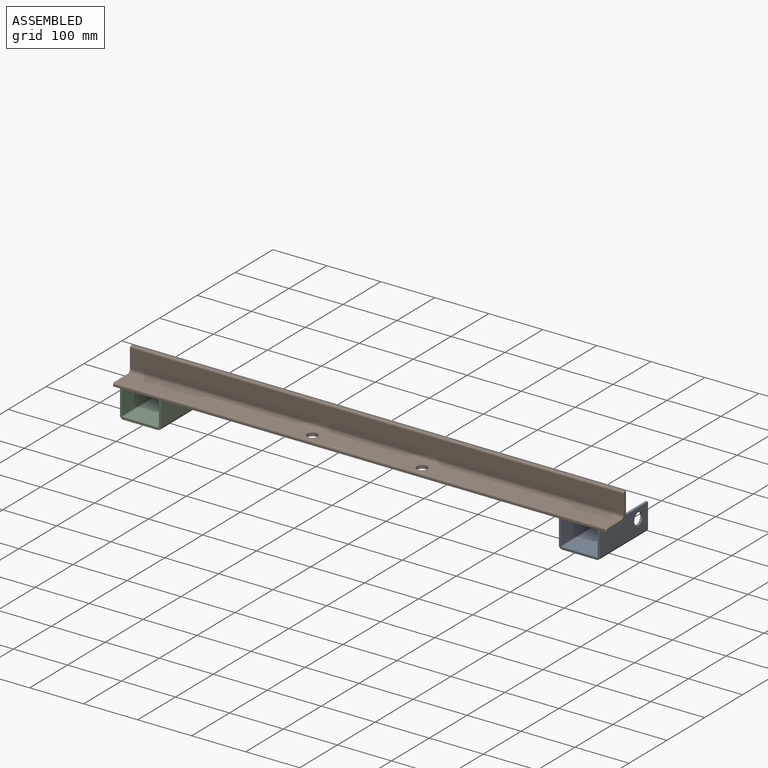
[diagram: assembled view]
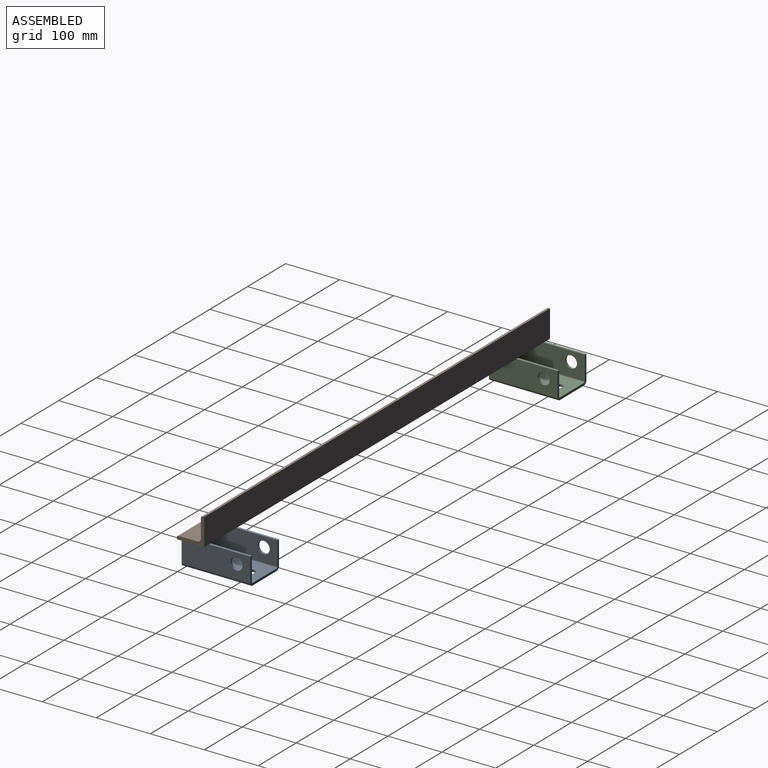
[diagram: assembled view, second angle]
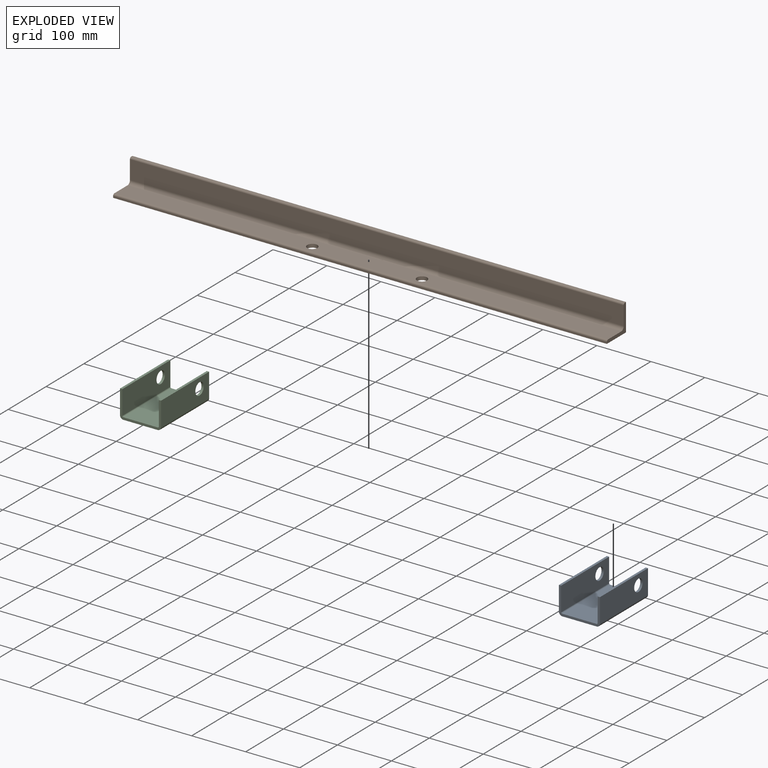
[diagram: exploded view]
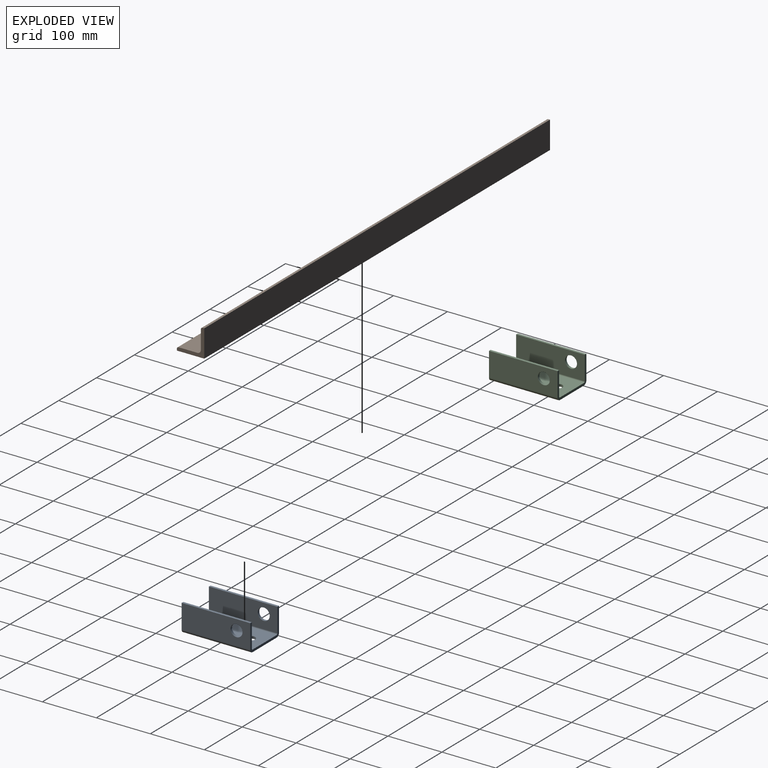
[diagram: exploded view, second angle]
ASSEMBLY  parts=3 mates=2
PART A: 17 faces, bbox 76.2x127x50.8 mm
  f0: plane 127x63.5mm, normal (0,0,1), area 7866.6mm2, adj f1,f11,f12,f13,f14
  f1: cylinder r=2.06mm len=127mm, axis (0,1,0), area 410.4mm2, adj f0,f2,f12,f13
  f2: plane 127x44.45mm, normal (1,0,0), area 5257.2mm2, adj f1,f3,f12,f13,f16
  f3: plane 127x4.29mm, normal (0,0,1), area 545.2mm2, adj f2,f4,f12,f13
  f4: plane 127x44.45mm, normal (-1,0,0), area 5257.2mm2, adj f3,f5,f12,f13,f16
  f5: cylinder r=6.35mm len=127mm, axis (0,1,0), area 1266.8mm2, adj f4,f6,f12,f13
  f6: plane 127x63.5mm, normal (0,0,-1), area 7866.6mm2, adj f5,f7,f12,f13,f14
  f7: cylinder r=6.35mm len=127mm, axis (0,1,0), area 1266.8mm2, adj f6,f8,f12,f13
  f8: plane 127x44.45mm, normal (1,0,0), area 5257.2mm2, adj f7,f9,f12,f13,f15
  f9: plane 127x4.29mm, normal (0,0,1), area 545.2mm2, adj f8,f10,f12,f13
  f10: plane 127x44.45mm, normal (-1,0,0), area 5257.2mm2, adj f9,f11,f12,f13,f15
  f11: cylinder r=2.06mm len=127mm, axis (0,1,0), area 410.4mm2, adj f0,f10,f12,f13
  f12: plane 76.2x50.8mm, normal (0,-1,0), area 710.9mm2, adj f0,f1,f2,f3,f4,f5,f6,f7
  f13: plane 76.2x50.8mm, normal (0,1,0), area 710.9mm2, adj f0,f1,f2,f3,f4,f5,f6,f7
  f14: cylinder r=7.94mm len=15.88mm, axis (0,0,-1), area 214.1mm2, adj f0,f6
  f15: cylinder r=11.11mm len=22.23mm, axis (1,0,0), area 299.7mm2, adj f8,f10
  f16: cylinder r=11.11mm len=22.23mm, axis (1,0,0), area 299.7mm2, adj f2,f4
PART B: 13 faces, bbox 914.4x50.8x50.8 mm
  f0: plane 50.8x50.8mm, normal (-1,0,0), area 609.2mm2, adj f2,f3,f4,f5,f6,f7,f8,f9
  f1: plane 50.8x50.8mm, normal (1,0,0), area 609.2mm2, adj f2,f3,f4,f5,f6,f7,f8,f9
  f2: plane 914.4x34.93mm, normal (0,-1,0), area 31935.4mm2, adj f0,f1,f3,f10
  f3: cylinder r=6.35mm len=914.4mm, axis (1,0,0), area 9120.8mm2, adj f0,f1,f2,f4
  f4: plane 914.4x34.93mm, normal (0,0,1), area 31365.4mm2, adj f0,f1,f3,f5,f11,f12
  f5: cylinder r=3.17mm len=914.4mm, axis (1,0,0), area 4560.4mm2, adj f0,f1,f4,f6
  f6: plane 914.4x3.18mm, normal (0,-1,0), area 2903.2mm2, adj f0,f1,f5,f7
  f7: plane 914.4x50.8mm, normal (0,0,-1), area 45881.5mm2, adj f0,f1,f6,f8,f11,f12
  f8: plane 914.4x50.8mm, normal (0,1,0), area 46451.5mm2, adj f0,f1,f7,f9
  f9: plane 914.4x3.18mm, normal (0,0,1), area 2903.2mm2, adj f0,f1,f8,f10
  f10: cylinder r=3.17mm len=914.4mm, axis (1,0,0), area 4560.4mm2, adj f0,f1,f2,f9
  f11: cylinder r=9.53mm len=19.05mm, axis (0,0,-1), area 380mm2, adj f4,f7
  f12: cylinder r=9.53mm len=19.05mm, axis (0,0,-1), area 380mm2, adj f4,f7
PART C: same geometry as A
PLACE A rot(axis=(0,0,1),180deg) t=(863.6,-50.8,-50.8)mm
PLACE B at identity
PLACE C rot(axis=(0,0,-1),180deg) t=(50.8,-50.8,-50.8)mm
MATE fastened A.f3 <-> B.f7  axis (0,0,1) through (901.7,-50.8,0)mm
MATE fastened C.f9 <-> B.f7  axis (0,0,1) through (12.7,-50.8,0)mm
